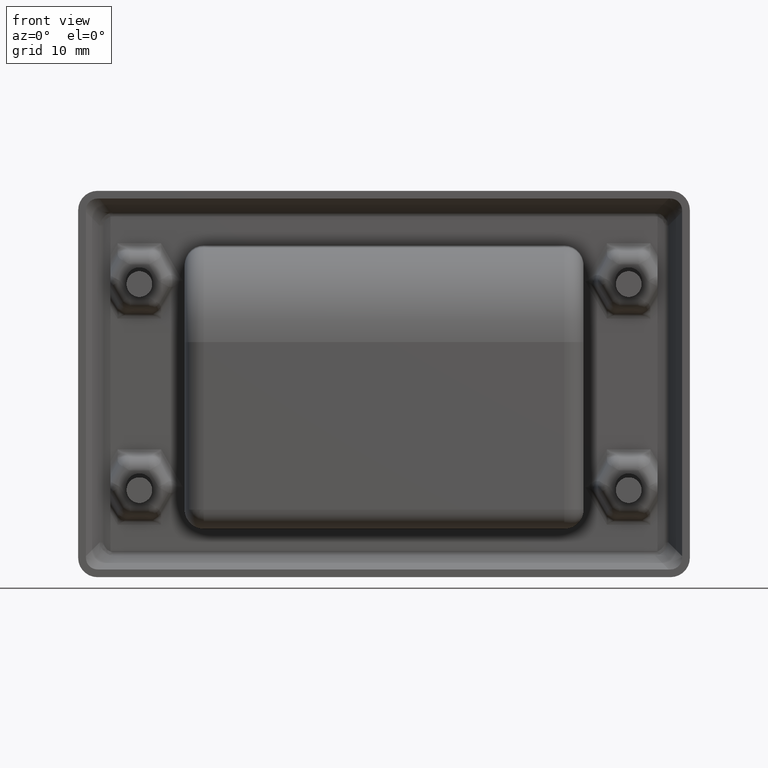
[diagram: clean part render]
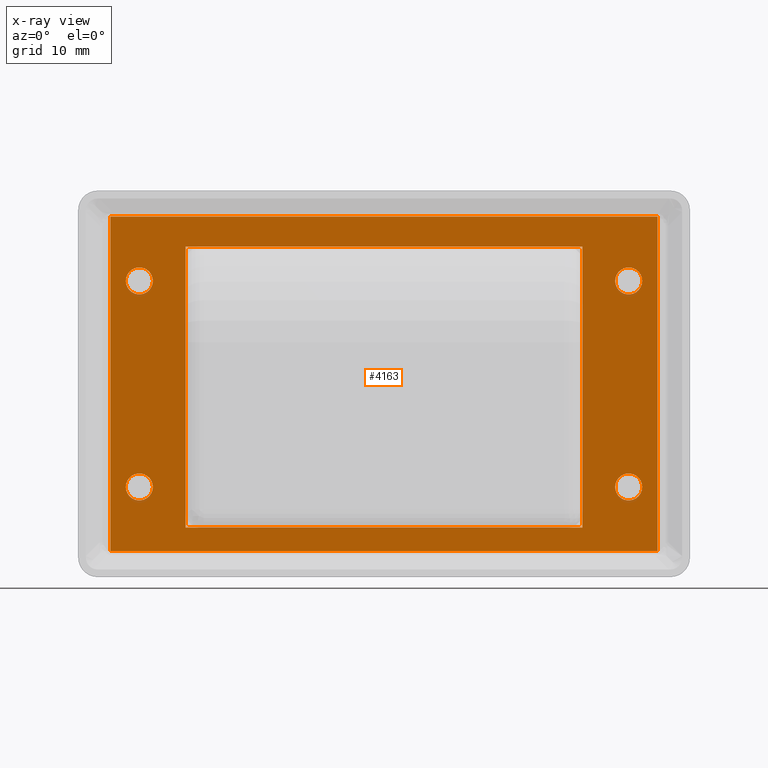
[diagram: x-ray — body ghosted, one internal face saturated and labeled with its STEP entity id]
A machine part, front view, then the same camera in x-ray: the body is ghosted and one INTERNAL B-rep face — a face not visible from any outside direction — is saturated and labeled: STEP entity #4163.
In plain terms, the highlighted planar face has unit normal (0, 1, 0).
Its self-contained STEP definition (entity closure, byte-faithful):
#322=LINE('',#7217,#637);
#390=LINE('',#7689,#705);
#470=LINE('',#8187,#785);
#473=LINE('',#8199,#788);
#474=LINE('',#8206,#789);
#476=LINE('',#8211,#791);
#483=LINE('',#8237,#798);
#484=LINE('',#8238,#799);
#637=VECTOR('',#5118,52.);
#705=VECTOR('',#5430,52.);
#785=VECTOR('',#5802,61.6);
#788=VECTOR('',#5813,43.5915516427453);
#789=VECTOR('',#5816,61.6);
#791=VECTOR('',#5822,43.5915516427453);
#798=VECTOR('',#5845,85.);
#799=VECTOR('',#5846,85.);
#893=PLANE('',#4627);
#921=FACE_BOUND('',#1458,.T.);
#922=FACE_BOUND('',#1459,.T.);
#923=FACE_BOUND('',#1460,.T.);
#924=FACE_BOUND('',#1461,.T.);
#925=FACE_BOUND('',#1462,.T.);
#1172=FACE_OUTER_BOUND('',#1457,.T.);
#1457=EDGE_LOOP('',(#3671,#3672,#3673,#3674));
#1458=EDGE_LOOP('',(#3675));
#1459=EDGE_LOOP('',(#3676));
#1460=EDGE_LOOP('',(#3677));
#1461=EDGE_LOOP('',(#3678));
#1462=EDGE_LOOP('',(#3679,#3680,#3681,#3682));
#1642=CIRCLE('',#4605,2.1);
#1643=CIRCLE('',#4607,2.1);
#1644=CIRCLE('',#4609,2.1);
#1645=CIRCLE('',#4611,2.1);
#1826=VERTEX_POINT('',#7214);
#1827=VERTEX_POINT('',#7216);
#1908=VERTEX_POINT('',#7686);
#1909=VERTEX_POINT('',#7688);
#1976=VERTEX_POINT('',#8173);
#1977=VERTEX_POINT('',#8176);
#1978=VERTEX_POINT('',#8179);
#1979=VERTEX_POINT('',#8182);
#1980=VERTEX_POINT('',#8185);
#1981=VERTEX_POINT('',#8186);
#1986=VERTEX_POINT('',#8197);
#1987=VERTEX_POINT('',#8205);
#2257=EDGE_CURVE('',#1826,#1827,#322,.T.);
#2399=EDGE_CURVE('',#1908,#1909,#390,.T.);
#2545=EDGE_CURVE('',#1976,#1976,#1642,.T.);
#2546=EDGE_CURVE('',#1977,#1977,#1643,.T.);
#2547=EDGE_CURVE('',#1978,#1978,#1644,.T.);
#2548=EDGE_CURVE('',#1979,#1979,#1645,.T.);
#2549=EDGE_CURVE('',#1980,#1981,#470,.T.);
#2555=EDGE_CURVE('',#1986,#1980,#473,.T.);
#2557=EDGE_CURVE('',#1987,#1986,#474,.T.);
#2560=EDGE_CURVE('',#1981,#1987,#476,.T.);
#2572=EDGE_CURVE('',#1908,#1827,#483,.T.);
#2573=EDGE_CURVE('',#1826,#1909,#484,.T.);
#3671=ORIENTED_EDGE('',*,*,#2572,.T.);
#3672=ORIENTED_EDGE('',*,*,#2257,.F.);
#3673=ORIENTED_EDGE('',*,*,#2573,.T.);
#3674=ORIENTED_EDGE('',*,*,#2399,.F.);
#3675=ORIENTED_EDGE('',*,*,#2545,.T.);
#3676=ORIENTED_EDGE('',*,*,#2546,.T.);
#3677=ORIENTED_EDGE('',*,*,#2547,.T.);
#3678=ORIENTED_EDGE('',*,*,#2548,.T.);
#3679=ORIENTED_EDGE('',*,*,#2549,.F.);
#3680=ORIENTED_EDGE('',*,*,#2555,.F.);
#3681=ORIENTED_EDGE('',*,*,#2557,.F.);
#3682=ORIENTED_EDGE('',*,*,#2560,.F.);
#4163=ADVANCED_FACE('',(#1172,#921,#922,#923,#924,#925),#893,.T.);
#4605=AXIS2_PLACEMENT_3D('',#8174,#5786,#5787);
#4607=AXIS2_PLACEMENT_3D('',#8177,#5790,#5791);
#4609=AXIS2_PLACEMENT_3D('',#8180,#5794,#5795);
#4611=AXIS2_PLACEMENT_3D('',#8183,#5798,#5799);
#4627=AXIS2_PLACEMENT_3D('',#8236,#5843,#5844);
#5118=DIRECTION('',(0.,1.,1.83697019872103E-16));
#5430=DIRECTION('',(0.,-1.,-1.83697019872103E-16));
#5786=DIRECTION('center_axis',(0.,-1.83697019872103E-16,1.));
#5787=DIRECTION('ref_axis',(1.,3.26993578897457E-33,-2.21601402120762E-17));
#5790=DIRECTION('center_axis',(0.,-1.83697019872103E-16,1.));
#5791=DIRECTION('ref_axis',(1.,3.26993578897457E-33,-2.21601402120762E-17));
#5794=DIRECTION('center_axis',(0.,-1.83697019872103E-16,1.));
#5795=DIRECTION('ref_axis',(1.,3.26993578897457E-33,-2.21601402120762E-17));
#5798=DIRECTION('center_axis',(0.,-1.83697019872103E-16,1.));
#5799=DIRECTION('ref_axis',(1.,3.26993578897457E-33,-2.21601402120762E-17));
#5802=DIRECTION('',(1.,0.,0.));
#5813=DIRECTION('',(0.,1.,1.83697019872103E-16));
#5816=DIRECTION('',(-1.,0.,0.));
#5822=DIRECTION('',(0.,-1.,-1.83697019872103E-16));
#5843=DIRECTION('center_axis',(0.,1.83697019872103E-16,-1.));
#5844=DIRECTION('ref_axis',(0.,1.,1.83697019872103E-16));
#5845=DIRECTION('',(1.,0.,0.));
#5846=DIRECTION('',(-1.,0.,0.));
#7214=CARTESIAN_POINT('',(42.5,-25.5,6.16297582203848E-33));
#7216=CARTESIAN_POINT('',(42.5,26.5,9.55224503334935E-15));
#7217=CARTESIAN_POINT('',(42.5,-25.5,6.16297582203848E-33));
#7686=CARTESIAN_POINT('',(-42.5,26.5,9.55224503334935E-15));
#7688=CARTESIAN_POINT('',(-42.5,-25.5,6.16297582203848E-33));
#7689=CARTESIAN_POINT('',(-42.5,-25.5,6.16297582203848E-33));
#8173=CARTESIAN_POINT('',(35.9,-15.5,4.653629444536E-17));
#8174=CARTESIAN_POINT('Origin',(38.,-15.5,0.));
#8176=CARTESIAN_POINT('',(-40.1,16.5,4.653629444536E-17));
#8177=CARTESIAN_POINT('Origin',(-38.,16.5,0.));
#8179=CARTESIAN_POINT('',(35.9,16.5,4.653629444536E-17));
#8180=CARTESIAN_POINT('Origin',(38.,16.5,0.));
#8182=CARTESIAN_POINT('',(-40.1,-15.5,4.653629444536E-17));
#8183=CARTESIAN_POINT('Origin',(-38.,-15.5,0.));
#8185=CARTESIAN_POINT('',(-30.8,21.7915516427452,8.74300631892311E-15));
#8186=CARTESIAN_POINT('',(30.8,21.7915516427452,8.74490876457942E-15));
#8187=CARTESIAN_POINT('',(0.,21.7915516427452,8.74300631892311E-15));
#8197=CARTESIAN_POINT('',(-30.8,-21.8,7.37270636206239E-16));
#8199=CARTESIAN_POINT('',(-30.8,-13.7259691089343,2.22044604925031E-15));
#8205=CARTESIAN_POINT('',(30.8,-21.8,6.93889390390723E-16));
#8206=CARTESIAN_POINT('',(0.,-21.8,6.93889390390723E-16));
#8211=CARTESIAN_POINT('',(30.8,-13.7259691089343,2.22044604925031E-15));
#8236=CARTESIAN_POINT('Origin',(0.,-25.5,6.16297582203848E-33));
#8237=CARTESIAN_POINT('',(0.,26.5,9.55224503334935E-15));
#8238=CARTESIAN_POINT('',(0.,-25.5,6.16297582203848E-33));